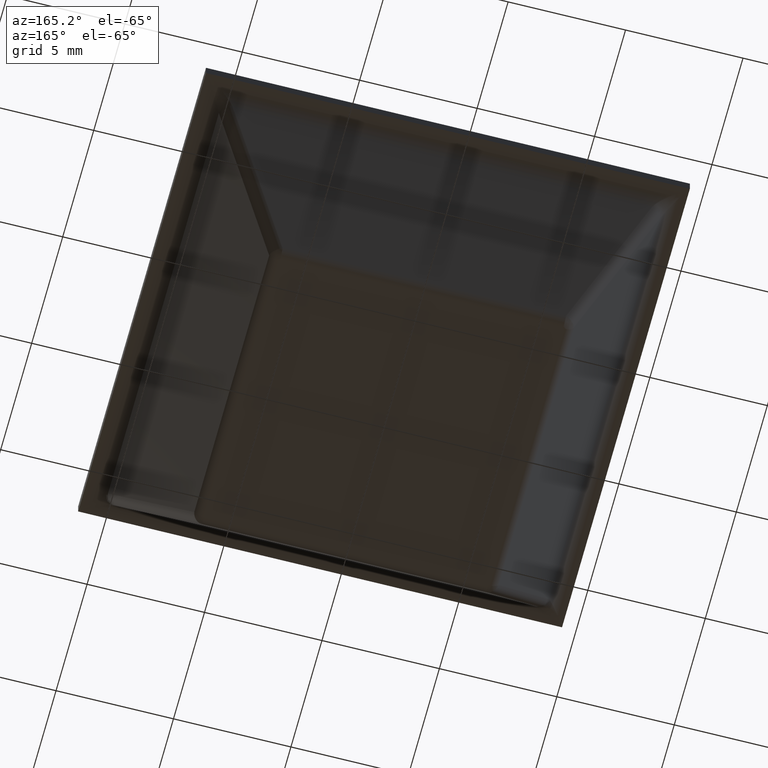
[diagram: clean part render]
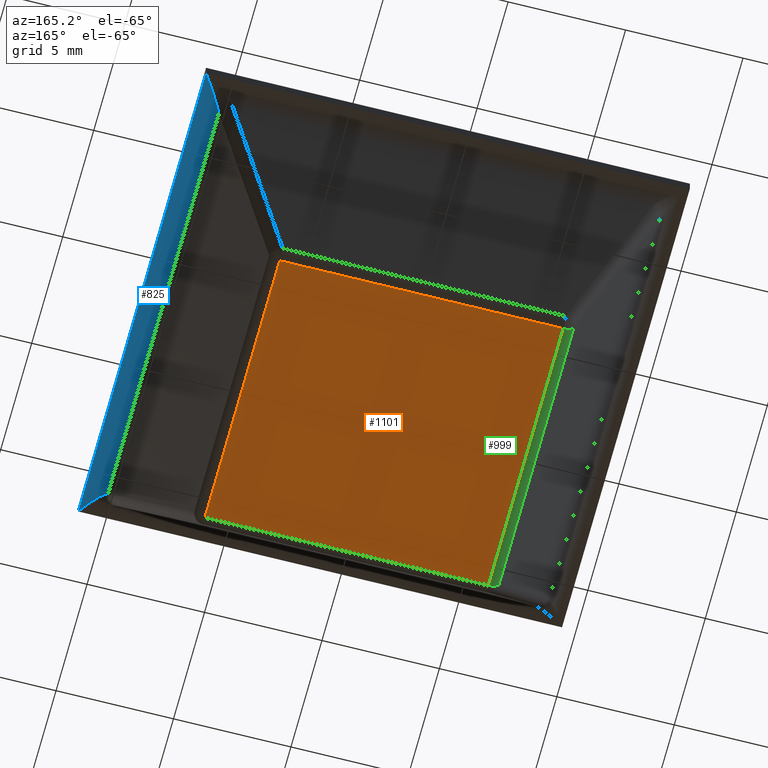
[diagram: same view with three faces highlighted in distinct colors, each labeled with its STEP entity id]
A machine part, auxiliary view with three faces highlighted in distinct colors.
Their STEP definitions:

[orange] entity #1101 — the highlighted face is a freeform B-spline surface patch.
#85=CARTESIAN_POINT('',(6.031465045455790,-6.031465045455790,0.0));
#86=VERTEX_POINT('',#85);
#249=CARTESIAN_POINT('',(6.031465045455790,6.031465045455790,0.0));
#250=VERTEX_POINT('',#249);
#555=CARTESIAN_POINT('',(-6.031465045455790,6.031465045455790,0.0));
#556=VERTEX_POINT('',#555);
#628=CARTESIAN_POINT('',(-6.031465045455790,-6.031465045455790,0.0));
#629=VERTEX_POINT('',#628);
#898=CARTESIAN_POINT('',(6.031465045455790,6.031465045455790,0.0));
#899=CARTESIAN_POINT('',(6.031465045455790,-6.031465045455790,0.0));
#900=QUASI_UNIFORM_CURVE('',1,(#898,#899),.UNSPECIFIED.,.F.,.U.);
#901=EDGE_CURVE('',#250,#86,#900,.T.);
#933=CARTESIAN_POINT('',(6.031465045455790,-6.031465045455790,0.0));
#934=CARTESIAN_POINT('',(-6.031465045455790,-6.031465045455790,0.0));
#935=QUASI_UNIFORM_CURVE('',1,(#933,#934),.UNSPECIFIED.,.F.,.U.);
#936=EDGE_CURVE('',#86,#629,#935,.T.);
#956=CARTESIAN_POINT('',(-6.031465045455790,6.031465045455790,0.0));
#957=CARTESIAN_POINT('',(6.031465045455790,6.031465045455790,0.0));
#958=QUASI_UNIFORM_CURVE('',1,(#956,#957),.UNSPECIFIED.,.F.,.U.);
#959=EDGE_CURVE('',#556,#250,#958,.T.);
#985=CARTESIAN_POINT('',(-6.031465045455790,-6.031465045455790,0.0));
#986=CARTESIAN_POINT('',(-6.031465045455790,6.031465045455790,0.0));
#987=QUASI_UNIFORM_CURVE('',1,(#985,#986),.UNSPECIFIED.,.F.,.U.);
#988=EDGE_CURVE('',#629,#556,#987,.T.);
#1090=CARTESIAN_POINT('',(-6.634008380116526,-6.634008380116526,0.0));
#1091=CARTESIAN_POINT('',(6.634008703669524,-6.634008380116526,0.0));
#1092=CARTESIAN_POINT('',(-6.634008380116526,6.634008703669523,0.0));
#1093=CARTESIAN_POINT('',(6.634008703669524,6.634008703669523,0.0));
#1094=B_SPLINE_SURFACE_WITH_KNOTS('',1,1,((#1090,#1092),(#1091,#1093)),.UNSPECIFIED.,.F.,.F.,.U.,(2,2),(2,2),(0.0,13.268017083786050),(0.0,13.268017083786050),.UNSPECIFIED.);
#1095=ORIENTED_EDGE('',*,*,#959,.T.);
#1096=ORIENTED_EDGE('',*,*,#901,.T.);
#1097=ORIENTED_EDGE('',*,*,#936,.T.);
#1098=ORIENTED_EDGE('',*,*,#988,.T.);
#1099=EDGE_LOOP('',(#1095,#1096,#1097,#1098));
#1100=FACE_OUTER_BOUND('',#1099,.T.);
#1101=ADVANCED_FACE('',(#1100),#1094,.F.);

[blue] entity #825 — the highlighted face is a freeform B-spline surface patch.
#130=CARTESIAN_POINT('',(9.391547127593508,-8.938393236846100,6.522618273625180));
#131=VERTEX_POINT('',#130);
#193=CARTESIAN_POINT('',(10.297854909088340,-10.297854909088340,7.100000000000001));
#194=VERTEX_POINT('',#193);
#195=CARTESIAN_POINT('',(10.297854909088329,-10.297854909088340,7.100000000000001));
#196=CARTESIAN_POINT('',(9.660784657498398,-9.342249531703446,7.100000000000001));
#197=CARTESIAN_POINT('',(9.391547127593499,-8.938393236846105,6.522618273625191));
#205=(BOUNDED_CURVE()B_SPLINE_CURVE(2,(#195,#196,#197),.UNSPECIFIED.,.F.,.U.)CURVE()GEOMETRIC_REPRESENTATION_ITEM()QUASI_UNIFORM_CURVE()RATIONAL_B_SPLINE_CURVE((1.0,0.843391449335735,1.0))REPRESENTATION_ITEM(''));
#206=EDGE_CURVE('',#194,#131,#205,.T.);
#313=CARTESIAN_POINT('',(9.391547127593508,8.938393236846089,6.522618273625180));
#314=VERTEX_POINT('',#313);
#374=CARTESIAN_POINT('',(10.297854909088340,10.297854909088340,7.100000000000001));
#375=VERTEX_POINT('',#374);
#389=CARTESIAN_POINT('',(9.391547127593501,8.938393236846093,6.522618273625196));
#390=CARTESIAN_POINT('',(9.660784657498404,9.342249531703443,7.100000000000001));
#391=CARTESIAN_POINT('',(10.297854909088329,10.297854909088340,7.100000000000001));
#399=(BOUNDED_CURVE()B_SPLINE_CURVE(2,(#389,#390,#391),.UNSPECIFIED.,.F.,.U.)CURVE()GEOMETRIC_REPRESENTATION_ITEM()QUASI_UNIFORM_CURVE()RATIONAL_B_SPLINE_CURVE((1.0,0.843391449335736,1.0))REPRESENTATION_ITEM(''));
#400=EDGE_CURVE('',#314,#375,#399,.T.);
#797=CARTESIAN_POINT('',(10.306581444586710,-10.812747654542759,7.099961923064171));
#798=CARTESIAN_POINT('',(10.306581444586710,10.825619973179119,7.099961923064171));
#799=CARTESIAN_POINT('',(9.632098610961799,-10.812747654542758,7.105848045580354));
#800=CARTESIAN_POINT('',(9.632098610961799,10.825619973179121,7.105848045580354));
#801=CARTESIAN_POINT('',(9.373975376577054,-10.812747654542759,6.482683432365092));
#802=CARTESIAN_POINT('',(9.373975376577054,10.825619973179119,6.482683432365092));
#810=(BOUNDED_SURFACE()B_SPLINE_SURFACE(1,2,((#797,#799,#801),(#798,#800,#802)),.UNSPECIFIED.,.F.,.F.,.U.)B_SPLINE_SURFACE_WITH_KNOTS((2,2),(3,3),(0.0,21.638367627721880),(0.0,1.0),.UNSPECIFIED.)GEOMETRIC_REPRESENTATION_ITEM()RATIONAL_B_SPLINE_SURFACE(((1.0,0.829037572555042,1.0),(1.0,0.829037572555042,1.0)))REPRESENTATION_ITEM('')SURFACE());
#811=CARTESIAN_POINT('',(9.391547127593508,8.938393236846089,6.522618273625180));
#812=CARTESIAN_POINT('',(9.391547127593508,-8.938393236846100,6.522618273625180));
#813=QUASI_UNIFORM_CURVE('',1,(#811,#812),.UNSPECIFIED.,.F.,.U.);
#814=EDGE_CURVE('',#314,#131,#813,.T.);
#815=ORIENTED_EDGE('',*,*,#814,.F.);
#816=ORIENTED_EDGE('',*,*,#400,.T.);
#817=CARTESIAN_POINT('',(10.297854909088340,-10.297854909088340,7.100000000000001));
#818=CARTESIAN_POINT('',(10.297854909088340,10.297854909088340,7.100000000000001));
#819=QUASI_UNIFORM_CURVE('',1,(#817,#818),.UNSPECIFIED.,.F.,.U.);
#820=EDGE_CURVE('',#194,#375,#819,.T.);
#821=ORIENTED_EDGE('',*,*,#820,.F.);
#822=ORIENTED_EDGE('',*,*,#206,.T.);
#823=EDGE_LOOP('',(#815,#816,#821,#822));
#824=FACE_OUTER_BOUND('',#823,.T.);
#825=ADVANCED_FACE('',(#824),#810,.F.);

[green] entity #999 — the highlighted face is a freeform B-spline surface patch.
#502=CARTESIAN_POINT('',(-6.484618936203209,6.031465045455790,0.288690863187423));
#503=VERTEX_POINT('',#502);
#555=CARTESIAN_POINT('',(-6.031465045455790,6.031465045455790,0.0));
#556=VERTEX_POINT('',#555);
#570=CARTESIAN_POINT('',(-6.484618936203209,6.031465045455790,0.288690863187423));
#571=CARTESIAN_POINT('',(-6.350000171250765,6.031465045455789,0.0));
#572=CARTESIAN_POINT('',(-6.031465045455790,6.031465045455790,0.0));
#580=(BOUNDED_CURVE()B_SPLINE_CURVE(2,(#570,#571,#572),.UNSPECIFIED.,.F.,.U.)CURVE()GEOMETRIC_REPRESENTATION_ITEM()QUASI_UNIFORM_CURVE()RATIONAL_B_SPLINE_CURVE((1.0,0.843391449335702,1.0))REPRESENTATION_ITEM(''));
#581=EDGE_CURVE('',#503,#556,#580,.T.);
#613=CARTESIAN_POINT('',(-6.484618936203209,-6.031465045455790,0.288690863187423));
#614=VERTEX_POINT('',#613);
#628=CARTESIAN_POINT('',(-6.031465045455790,-6.031465045455790,0.0));
#629=VERTEX_POINT('',#628);
#630=CARTESIAN_POINT('',(-6.031465045455790,-6.031465045455790,0.0));
#631=CARTESIAN_POINT('',(-6.350000171250765,-6.031465045455790,0.0));
#632=CARTESIAN_POINT('',(-6.484618936203209,-6.031465045455790,0.288690863187423));
#640=(BOUNDED_CURVE()B_SPLINE_CURVE(2,(#630,#631,#632),.UNSPECIFIED.,.F.,.U.)CURVE()GEOMETRIC_REPRESENTATION_ITEM()QUASI_UNIFORM_CURVE()RATIONAL_B_SPLINE_CURVE((1.0,0.843391449335703,1.0))REPRESENTATION_ITEM(''));
#641=EDGE_CURVE('',#629,#614,#640,.T.);
#971=CARTESIAN_POINT('',(-6.489995082648352,-6.333038297728581,0.300625465537377));
#972=CARTESIAN_POINT('',(-6.489995082648352,6.340577629035400,0.300625465537377));
#973=CARTESIAN_POINT('',(-6.351490222842657,-6.333038297728581,-0.017913904042750));
#974=CARTESIAN_POINT('',(-6.351490222842657,6.340577629035400,-0.017913904042750));
#975=CARTESIAN_POINT('',(-6.004641979429323,-6.333038297728581,0.000719995264241));
#976=CARTESIAN_POINT('',(-6.004641979429323,6.340577629035399,0.000719995264241));
#984=(BOUNDED_SURFACE()B_SPLINE_SURFACE(1,2,((#971,#973,#975),(#972,#974,#976)),.UNSPECIFIED.,.F.,.F.,.U.)B_SPLINE_SURFACE_WITH_KNOTS((2,2),(3,3),(0.0,12.673615926763979),(0.0,0.978671879266109),.UNSPECIFIED.)GEOMETRIC_REPRESENTATION_ITEM()RATIONAL_B_SPLINE_SURFACE(((1.0,0.818080085023373,0.992239980178959),(1.0,0.818080085023373,0.992239980178959)))REPRESENTATION_ITEM('')SURFACE());
#985=CARTESIAN_POINT('',(-6.031465045455790,-6.031465045455790,0.0));
#986=CARTESIAN_POINT('',(-6.031465045455790,6.031465045455790,0.0));
#987=QUASI_UNIFORM_CURVE('',1,(#985,#986),.UNSPECIFIED.,.F.,.U.);
#988=EDGE_CURVE('',#629,#556,#987,.T.);
#989=ORIENTED_EDGE('',*,*,#988,.F.);
#990=ORIENTED_EDGE('',*,*,#641,.T.);
#991=CARTESIAN_POINT('',(-6.484618936203209,6.031465045455790,0.288690863187423));
#992=CARTESIAN_POINT('',(-6.484618936203209,-6.031465045455790,0.288690863187423));
#993=QUASI_UNIFORM_CURVE('',1,(#991,#992),.UNSPECIFIED.,.F.,.U.);
#994=EDGE_CURVE('',#503,#614,#993,.T.);
#995=ORIENTED_EDGE('',*,*,#994,.F.);
#996=ORIENTED_EDGE('',*,*,#581,.T.);
#997=EDGE_LOOP('',(#989,#990,#995,#996));
#998=FACE_OUTER_BOUND('',#997,.T.);
#999=ADVANCED_FACE('',(#998),#984,.T.);